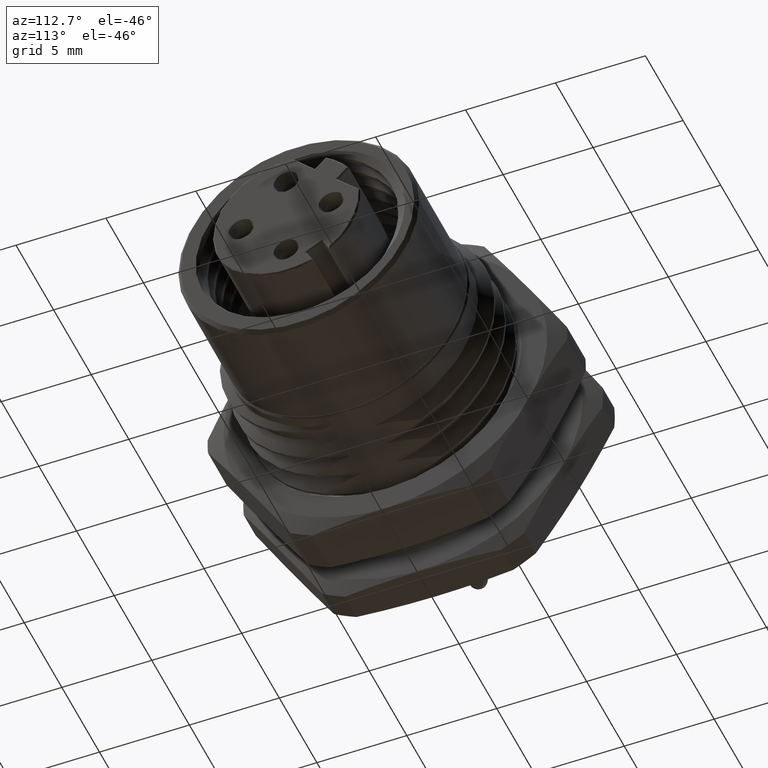
[diagram: clean part render]
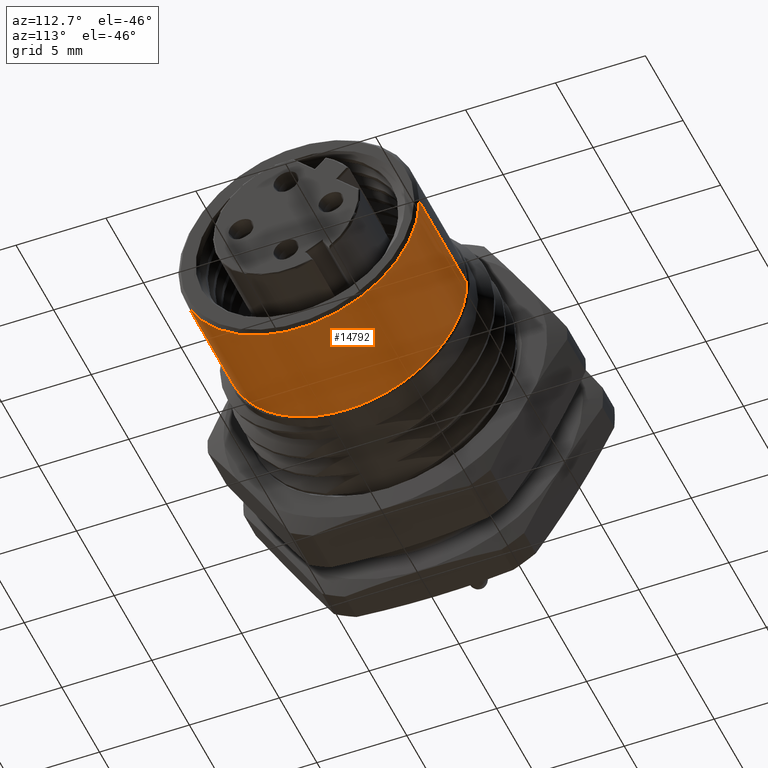
[diagram: same view with one face highlighted and labeled with its STEP entity id]
A machine part, auxiliary view. The second image highlights one B-rep face of the part: STEP entity #14792.
In plain terms, the highlighted cylindrical surface (partial cylindrical patch) has radius 6.7 mm, axis along (1, 0, 0).
Its self-contained STEP definition (entity closure, byte-faithful):
#3155=CARTESIAN_POINT('',(3.937007874016E-1,0.E0,0.E0));
#3156=DIRECTION('',(1.E0,0.E0,0.E0));
#3157=DIRECTION('',(0.E0,-1.E0,3.567047155163E-14));
#3158=AXIS2_PLACEMENT_3D('',#3155,#3156,#3157);
#3165=DIRECTION('',(-1.E0,0.E0,-3.240992354900E-12));
#3166=VECTOR('',#3165,2.480314960638E-1);
#3167=CARTESIAN_POINT('',(6.417322834654E-1,2.637795275591E-1,
-2.411544488300E-12));
#3168=LINE('',#3167,#3166);
#3169=DIRECTION('',(1.E0,0.E0,-1.269935455504E-14));
#3170=VECTOR('',#3169,2.480314960630E-1);
#3171=CARTESIAN_POINT('',(3.937007874016E-1,-2.637795275591E-1,0.E0));
#3172=LINE('',#3171,#3170);
#3173=CARTESIAN_POINT('',(6.417322834646E-1,0.E0,0.E0));
#3174=DIRECTION('',(-1.E0,0.E0,0.E0));
#3175=DIRECTION('',(0.E0,1.E0,0.E0));
#3176=AXIS2_PLACEMENT_3D('',#3173,#3174,#3175);
#9931=CARTESIAN_POINT('',(6.417322834646E-1,-2.637795275591E-1,0.E0));
#9932=VERTEX_POINT('',#9931);
#9933=CARTESIAN_POINT('',(6.417322834646E-1,2.637795275591E-1,
-9.646177953201E-12));
#9934=VERTEX_POINT('',#9933);
#9939=CARTESIAN_POINT('',(3.937007874016E-1,-2.637795275591E-1,0.E0));
#9940=VERTEX_POINT('',#9939);
#9941=CARTESIAN_POINT('',(3.937007874016E-1,2.637795275591E-1,0.E0));
#9942=VERTEX_POINT('',#9941);
#14780=CARTESIAN_POINT('',(3.887401574804E-1,0.E0,0.E0));
#14781=DIRECTION('',(1.E0,0.E0,0.E0));
#14782=DIRECTION('',(0.E0,-1.E0,0.E0));
#14783=AXIS2_PLACEMENT_3D('',#14780,#14781,#14782);
#14784=CYLINDRICAL_SURFACE('',#14783,2.637795275591E-1);
#14786=ORIENTED_EDGE('',*,*,#14785,.F.);
#14787=ORIENTED_EDGE('',*,*,#14755,.T.);
#14788=ORIENTED_EDGE('',*,*,#14773,.F.);
#14789=ORIENTED_EDGE('',*,*,#14759,.T.);
#14790=EDGE_LOOP('',(#14786,#14787,#14788,#14789));
#14791=FACE_OUTER_BOUND('',#14790,.F.);
#14792=ADVANCED_FACE('',(#14791),#14784,.T.);
#3159=CIRCLE('',#3158,2.637795275591E-1);
#3177=CIRCLE('',#3176,2.637795275591E-1);
#14755=EDGE_CURVE('',#9934,#9942,#3168,.T.);
#14759=EDGE_CURVE('',#9940,#9932,#3172,.T.);
#14773=EDGE_CURVE('',#9940,#9942,#3159,.T.);
#14785=EDGE_CURVE('',#9934,#9932,#3177,.T.);